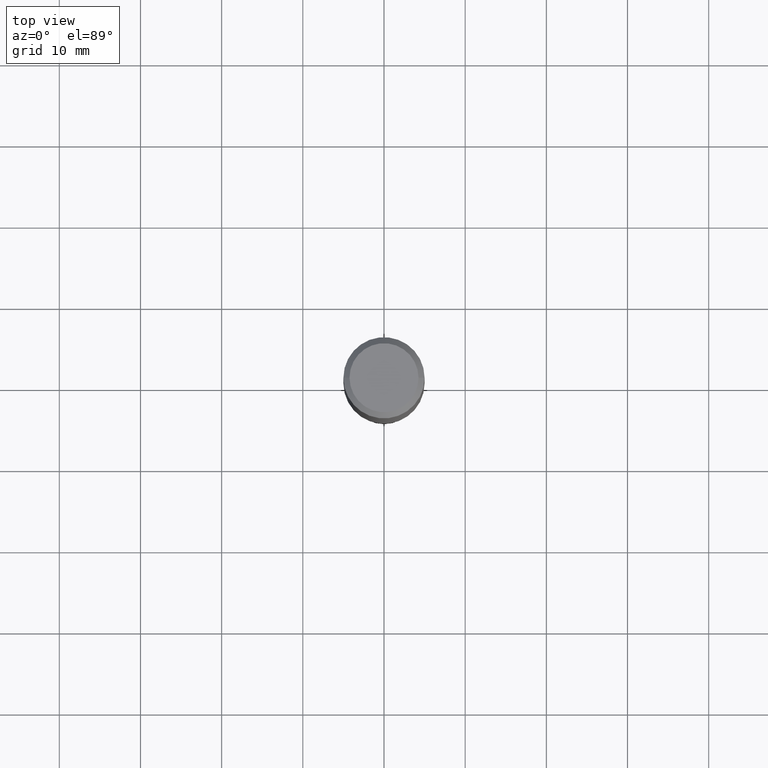
[diagram: clean part render]
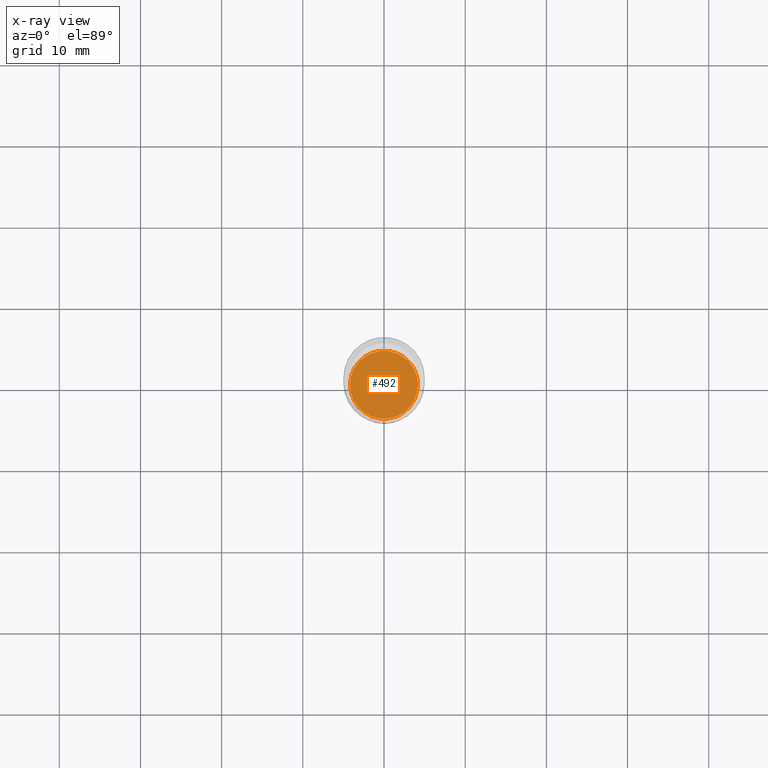
[diagram: x-ray — body ghosted, one internal face saturated and labeled with its STEP entity id]
A machine part, top view, then the same camera in x-ray: the body is ghosted and one INTERNAL B-rep face — a face not visible from any outside direction — is saturated and labeled: STEP entity #492.
In plain terms, the highlighted planar face has unit normal (-0, 0, 1).
Its self-contained STEP definition (entity closure, byte-faithful):
#34 = DIRECTION ( 'NONE',  ( -2.445468806185136597E-29, 3.491481338843145583E-15, 1.000000000000000000 ) ) ;
#35 = DIRECTION ( 'NONE',  ( 1.000000000000000000, -6.982962677686265922E-15, 4.876176775795935793E-29 ) ) ;
#38 = CARTESIAN_POINT ( 'NONE',  ( 4.852299205232546160E-29, -6.927797272532566919E-15, -1.984199999999999298 ) ) ;
#53 = AXIS2_PLACEMENT_3D ( 'NONE', #265, #34, #407 ) ;
#68 = PLANE ( 'NONE',  #398 ) ;
#100 = EDGE_LOOP ( 'NONE', ( #351, #431 ) ) ;
#188 = CARTESIAN_POINT ( 'NONE',  ( -0.1648499999999999965, -5.753818345457930192E-15, -1.984199999999999298 ) ) ;
#221 = FACE_OUTER_BOUND ( 'NONE', #100, .T. ) ;
#225 = CARTESIAN_POINT ( 'NONE',  ( 7.148409496949961004E-29, -3.639636648311379260E-15, -1.984199999999999520 ) ) ;
#228 = DIRECTION ( 'NONE',  ( -2.438088387897960049E-29, 3.491481338843145188E-15, 1.000000000000000000 ) ) ;
#232 = DIRECTION ( 'NONE',  ( -2.445468806185136597E-29, 3.491481338843145583E-15, 1.000000000000000000 ) ) ;
#265 = CARTESIAN_POINT ( 'NONE',  ( 4.852299205232546160E-29, -6.927797272532566919E-15, -1.984199999999999298 ) ) ;
#284 = VERTEX_POINT ( 'NONE', #188 ) ;
#303 = CARTESIAN_POINT ( 'NONE',  ( 0.1648499999999999965, -8.078938669949147393E-15, -1.984199999999999298 ) ) ;
#319 = VERTEX_POINT ( 'NONE', #303 ) ;
#336 = EDGE_CURVE ( 'NONE', #319, #284, #389, .T. ) ;
#351 = ORIENTED_EDGE ( 'NONE', *, *, #336, .F. ) ;
#366 = AXIS2_PLACEMENT_3D ( 'NONE', #38, #232, #399 ) ;
#389 = CIRCLE ( 'NONE', #53, 0.1648499999999999965 ) ;
#390 = CIRCLE ( 'NONE', #366, 0.1648499999999999965 ) ;
#398 = AXIS2_PLACEMENT_3D ( 'NONE', #225, #228, #35 ) ;
#399 = DIRECTION ( 'NONE',  ( 1.000000000000000000, -6.982962677686268288E-15, 0.000000000000000000 ) ) ;
#407 = DIRECTION ( 'NONE',  ( 1.000000000000000000, -6.982962677686268288E-15, 0.000000000000000000 ) ) ;
#431 = ORIENTED_EDGE ( 'NONE', *, *, #479, .F. ) ;
#479 = EDGE_CURVE ( 'NONE', #284, #319, #390, .T. ) ;
#492 = ADVANCED_FACE ( 'NONE', ( #221 ), #68, .F. ) ;